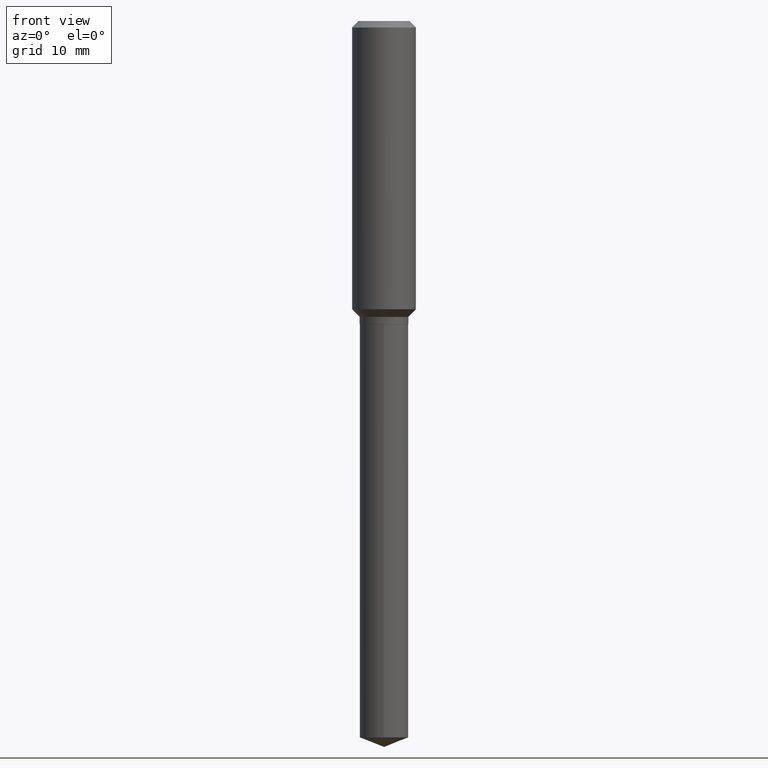
[diagram: clean part render]
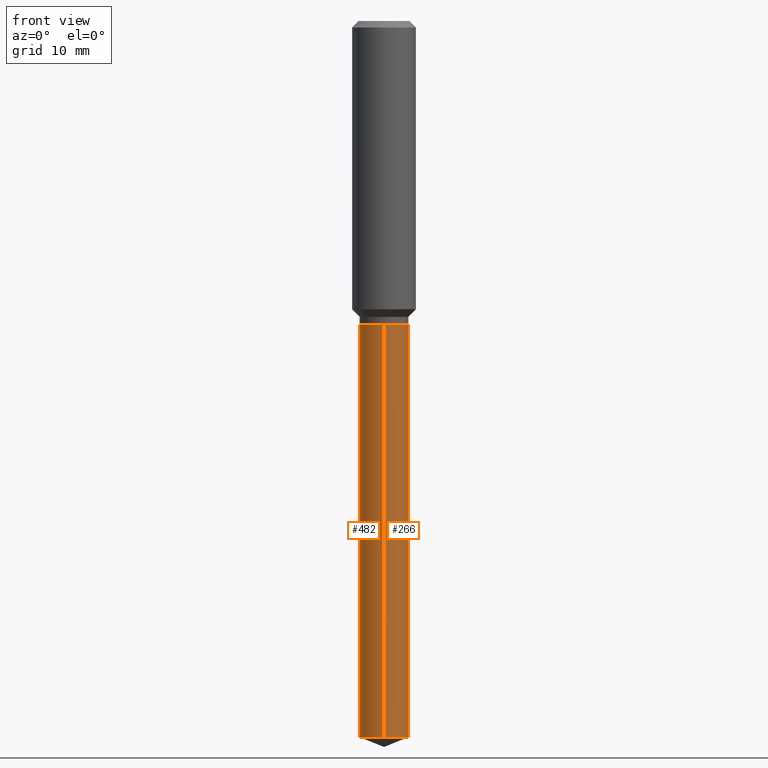
[diagram: same view with one multi-face feature highlighted, each face labeled with its STEP entity id]
A machine part, front view. The highlighted faces form ONE feature: a constant-radius fillet chain: 2 tangent blend faces with common blend radius 3.0505 mm. The faces share edges in the B-rep.
Their STEP definitions:
[1] entity #266 (Cylinder):
#6 = CARTESIAN_POINT ( 'NONE',  ( 3.659399521575438742E-29, -5.224652675444883351E-15, -1.496400000000000174 ) ) ;
#47 = AXIS2_PLACEMENT_3D ( 'NONE', #177, #140, #135 ) ;
#51 = VERTEX_POINT ( 'NONE', #433 ) ;
#56 = VECTOR ( 'NONE', #61, 39.37007874015748143 ) ;
#61 = DIRECTION ( 'NONE',  ( -2.445425864037539356E-29, 3.491542834442619101E-15, 1.000000000000000000 ) ) ;
#72 = EDGE_CURVE ( 'NONE', #319, #432, #260, .T. ) ;
#86 = CARTESIAN_POINT ( 'NONE',  ( -8.386538175900839049E-16, -0.1201000000000052303, -1.496399999999999730 ) ) ;
#91 = ORIENTED_EDGE ( 'NONE', *, *, #358, .F. ) ;
#104 = ORIENTED_EDGE ( 'NONE', *, *, #72, .T. ) ;
#123 = VERTEX_POINT ( 'NONE', #442 ) ;
#130 = AXIS2_PLACEMENT_3D ( 'NONE', #444, #359, #362 ) ;
#134 = EDGE_CURVE ( 'NONE', #51, #123, #315, .T. ) ;
#135 = DIRECTION ( 'NONE',  ( -6.982962677686265922E-15, -1.000000000000000000, 4.549288915344318469E-15 ) ) ;
#140 = DIRECTION ( 'NONE',  ( -2.445425864037539637E-29, 3.491542834442619495E-15, 1.000000000000000000 ) ) ;
#154 = ORIENTED_EDGE ( 'NONE', *, *, #414, .T. ) ;
#177 = CARTESIAN_POINT ( 'NONE',  ( 8.646335337767556981E-29, -1.234492578243756992E-14, -3.535691351878645250 ) ) ;
#190 = DIRECTION ( 'NONE',  ( -2.445425864037539637E-29, 3.491542834442619495E-15, 1.000000000000000000 ) ) ;
#228 = CARTESIAN_POINT ( 'NONE',  ( -8.386538175900343053E-16, -0.1201000000000123774, -3.535691351878644362 ) ) ;
#234 = VECTOR ( 'NONE', #349, 39.37007874015748143 ) ;
#260 = CIRCLE ( 'NONE', #47, 0.1200999999999999984 ) ;
#266 = ADVANCED_FACE ( 'NONE', ( #306 ), #408, .T. ) ;
#306 = FACE_OUTER_BOUND ( 'NONE', #390, .T. ) ;
#314 = ORIENTED_EDGE ( 'NONE', *, *, #134, .F. ) ;
#315 = CIRCLE ( 'NONE', #130, 0.1200999999999999984 ) ;
#319 = VERTEX_POINT ( 'NONE', #228 ) ;
#324 = CARTESIAN_POINT ( 'NONE',  ( 8.533618256479168955E-16, 0.1200999999999947804, -1.496400000000000841 ) ) ;
#349 = DIRECTION ( 'NONE',  ( -2.445425864037539356E-29, 3.491542834442619101E-15, 1.000000000000000000 ) ) ;
#358 = EDGE_CURVE ( 'NONE', #319, #51, #382, .T. ) ;
#359 = DIRECTION ( 'NONE',  ( -2.445425864037539637E-29, 3.491542834442619495E-15, 1.000000000000000000 ) ) ;
#362 = DIRECTION ( 'NONE',  ( -6.982962677686265922E-15, -1.000000000000000000, 4.549288915344318469E-15 ) ) ;
#382 = LINE ( 'NONE', #86, #234 ) ;
#390 = EDGE_LOOP ( 'NONE', ( #104, #154, #314, #91 ) ) ;
#399 = LINE ( 'NONE', #324, #56 ) ;
#408 = CYLINDRICAL_SURFACE ( 'NONE', #429, 0.1200999999999999984 ) ;
#414 = EDGE_CURVE ( 'NONE', #432, #123, #399, .T. ) ;
#417 = DIRECTION ( 'NONE',  ( -6.982962677686265922E-15, -1.000000000000000000, 4.549288915344318469E-15 ) ) ;
#429 = AXIS2_PLACEMENT_3D ( 'NONE', #6, #190, #417 ) ;
#432 = VERTEX_POINT ( 'NONE', #485 ) ;
#433 = CARTESIAN_POINT ( 'NONE',  ( -8.386538175900839049E-16, -0.1201000000000052303, -1.496399999999999730 ) ) ;
#442 = CARTESIAN_POINT ( 'NONE',  ( 8.533618256479669881E-16, 0.1200999999999947804, -1.496400000000000841 ) ) ;
#444 = CARTESIAN_POINT ( 'NONE',  ( 3.659399521575438742E-29, -5.224652675444883351E-15, -1.496400000000000174 ) ) ;
#485 = CARTESIAN_POINT ( 'NONE',  ( 8.533618256479670867E-16, 0.1200999999999877166, -3.535691351878645694 ) ) ;
[2] entity #482 (Cylinder):
#30 = ORIENTED_EDGE ( 'NONE', *, *, #129, .F. ) ;
#38 = CYLINDRICAL_SURFACE ( 'NONE', #244, 0.1200999999999999984 ) ;
#43 = DIRECTION ( 'NONE',  ( -2.445425864037539637E-29, 3.491542834442619495E-15, 1.000000000000000000 ) ) ;
#49 = CIRCLE ( 'NONE', #175, 0.1200999999999999984 ) ;
#51 = VERTEX_POINT ( 'NONE', #433 ) ;
#56 = VECTOR ( 'NONE', #61, 39.37007874015748143 ) ;
#61 = DIRECTION ( 'NONE',  ( -2.445425864037539356E-29, 3.491542834442619101E-15, 1.000000000000000000 ) ) ;
#68 = DIRECTION ( 'NONE',  ( -2.445425864037539637E-29, 3.491542834442619495E-15, 1.000000000000000000 ) ) ;
#71 = ORIENTED_EDGE ( 'NONE', *, *, #358, .T. ) ;
#86 = CARTESIAN_POINT ( 'NONE',  ( -8.386538175900839049E-16, -0.1201000000000052303, -1.496399999999999730 ) ) ;
#123 = VERTEX_POINT ( 'NONE', #442 ) ;
#129 = EDGE_CURVE ( 'NONE', #123, #51, #49, .T. ) ;
#147 = DIRECTION ( 'NONE',  ( -6.982962677686265922E-15, -1.000000000000000000, 4.549288915344318469E-15 ) ) ;
#157 = ORIENTED_EDGE ( 'NONE', *, *, #341, .T. ) ;
#175 = AXIS2_PLACEMENT_3D ( 'NONE', #405, #68, #364 ) ;
#183 = CIRCLE ( 'NONE', #472, 0.1200999999999999984 ) ;
#228 = CARTESIAN_POINT ( 'NONE',  ( -8.386538175900343053E-16, -0.1201000000000123774, -3.535691351878644362 ) ) ;
#234 = VECTOR ( 'NONE', #349, 39.37007874015748143 ) ;
#240 = EDGE_LOOP ( 'NONE', ( #299, #157, #71, #30 ) ) ;
#244 = AXIS2_PLACEMENT_3D ( 'NONE', #340, #443, #410 ) ;
#299 = ORIENTED_EDGE ( 'NONE', *, *, #414, .F. ) ;
#319 = VERTEX_POINT ( 'NONE', #228 ) ;
#324 = CARTESIAN_POINT ( 'NONE',  ( 8.533618256479168955E-16, 0.1200999999999947804, -1.496400000000000841 ) ) ;
#340 = CARTESIAN_POINT ( 'NONE',  ( 3.659399521575438742E-29, -5.224652675444883351E-15, -1.496400000000000174 ) ) ;
#341 = EDGE_CURVE ( 'NONE', #432, #319, #183, .T. ) ;
#349 = DIRECTION ( 'NONE',  ( -2.445425864037539356E-29, 3.491542834442619101E-15, 1.000000000000000000 ) ) ;
#358 = EDGE_CURVE ( 'NONE', #319, #51, #382, .T. ) ;
#364 = DIRECTION ( 'NONE',  ( -6.982962677686265922E-15, -1.000000000000000000, 4.549288915344318469E-15 ) ) ;
#382 = LINE ( 'NONE', #86, #234 ) ;
#399 = LINE ( 'NONE', #324, #56 ) ;
#405 = CARTESIAN_POINT ( 'NONE',  ( 3.659399521575438742E-29, -5.224652675444883351E-15, -1.496400000000000174 ) ) ;
#410 = DIRECTION ( 'NONE',  ( -6.982962677686265922E-15, -1.000000000000000000, 4.549288915344318469E-15 ) ) ;
#414 = EDGE_CURVE ( 'NONE', #432, #123, #399, .T. ) ;
#432 = VERTEX_POINT ( 'NONE', #485 ) ;
#433 = CARTESIAN_POINT ( 'NONE',  ( -8.386538175900839049E-16, -0.1201000000000052303, -1.496399999999999730 ) ) ;
#442 = CARTESIAN_POINT ( 'NONE',  ( 8.533618256479669881E-16, 0.1200999999999947804, -1.496400000000000841 ) ) ;
#443 = DIRECTION ( 'NONE',  ( -2.445425864037539637E-29, 3.491542834442619495E-15, 1.000000000000000000 ) ) ;
#460 = CARTESIAN_POINT ( 'NONE',  ( 8.646335337767556981E-29, -1.234492578243756992E-14, -3.535691351878645250 ) ) ;
#472 = AXIS2_PLACEMENT_3D ( 'NONE', #460, #43, #147 ) ;
#482 = ADVANCED_FACE ( 'NONE', ( #490 ), #38, .T. ) ;
#485 = CARTESIAN_POINT ( 'NONE',  ( 8.533618256479670867E-16, 0.1200999999999877166, -3.535691351878645694 ) ) ;
#490 = FACE_OUTER_BOUND ( 'NONE', #240, .T. ) ;